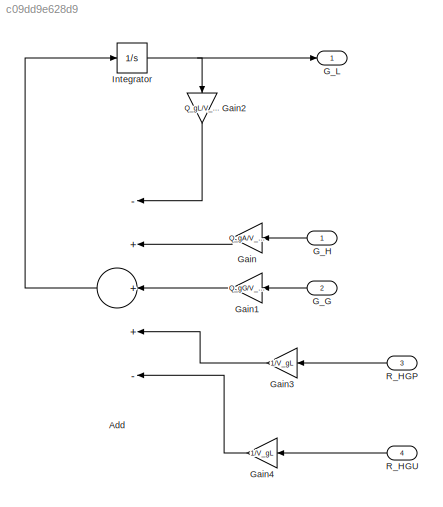
MODEL slx_c09dd9e628d9
KIND model
CONFIG AbsTol = auto
CONFIG EnableMultiTasking = off
CONFIG FixedStep = auto
CONFIG MaxStep = auto
CONFIG MinStep = auto
CONFIG RelTol = 1e-3
CONFIG SampleTimeConstraint = Unconstrained
CONFIG Solver = VariableStepAuto
CONFIG SolverName = VariableStepAuto
CONFIG StartTime = 0.0
CONFIG StopTime = 10.0
BLOCK [Sum] Add
  InputSameDT = off
  Inputs = -+++-
  OutDataTypeStr = Inherit: Inherit via internal rule
  Ports = [5, 1]
  SaturateOnIntegerOverflow = off
BLOCK [Inport] G_G
  IconDisplay = Port number
  Port = 2
BLOCK [Inport] G_H
  IconDisplay = Port number
BLOCK [Outport] G_L
  IconDisplay = Port number
BLOCK [Gain] Gain
  Gain = Q_gA/V_gL
  OutDataTypeStr = Inherit: Inherit via internal rule
  ParamDataTypeStr = Inherit: Inherit via internal rule
  SaturateOnIntegerOverflow = off
BLOCK [Gain] Gain1
  Gain = Q_gG/V_gL
  OutDataTypeStr = Inherit: Inherit via internal rule
  ParamDataTypeStr = Inherit: Inherit via internal rule
  SaturateOnIntegerOverflow = off
BLOCK [Gain] Gain2
  Gain = Q_gL/V_gL
  OutDataTypeStr = Inherit: Inherit via internal rule
  ParamDataTypeStr = Inherit: Inherit via internal rule
  SaturateOnIntegerOverflow = off
BLOCK [Gain] Gain3
  Gain = 1/V_gL
  OutDataTypeStr = Inherit: Inherit via internal rule
  ParamDataTypeStr = Inherit: Inherit via internal rule
  SaturateOnIntegerOverflow = off
BLOCK [Gain] Gain4
  Gain = 1/V_gL
  OutDataTypeStr = Inherit: Inherit via internal rule
  ParamDataTypeStr = Inherit: Inherit via internal rule
  SaturateOnIntegerOverflow = off
BLOCK [Integrator] Integrator
  InitialCondition = GLC_B
  LimitOutput = on
  LowerSaturationLimit = 0
  Ports = [1, 1]
BLOCK [Inport] R_HGP
  IconDisplay = Port number
  Port = 3
BLOCK [Inport] R_HGU
  IconDisplay = Port number
  Port = 4
LINE Add:1 -> Integrator:1
LINE G_G:1 -> Gain1:1
LINE G_H:1 -> Gain:1
LINE Gain1:1 -> Add:3
LINE Gain2:1 -> Add:1
LINE Gain3:1 -> Add:4
LINE Gain4:1 -> Add:5
LINE Gain:1 -> Add:2
NET Integrator:1 -> G_L:1, Gain2:1
LINE R_HGP:1 -> Gain3:1
LINE R_HGU:1 -> Gain4:1
note: NET lines group one-source signal fan-out (src -> all destinations, sorted); 1:1 wires keep LINE
